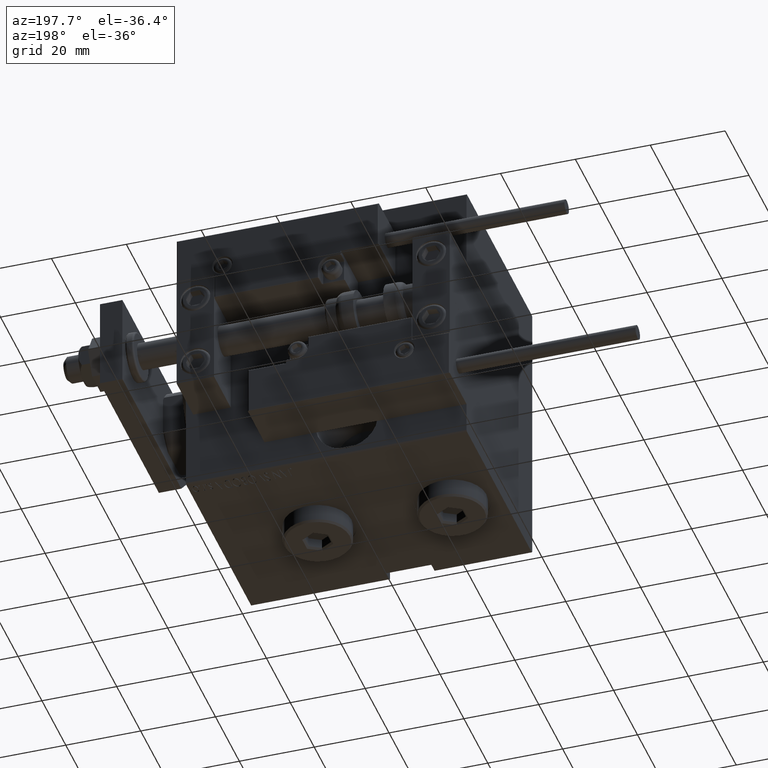
[diagram: clean part render]
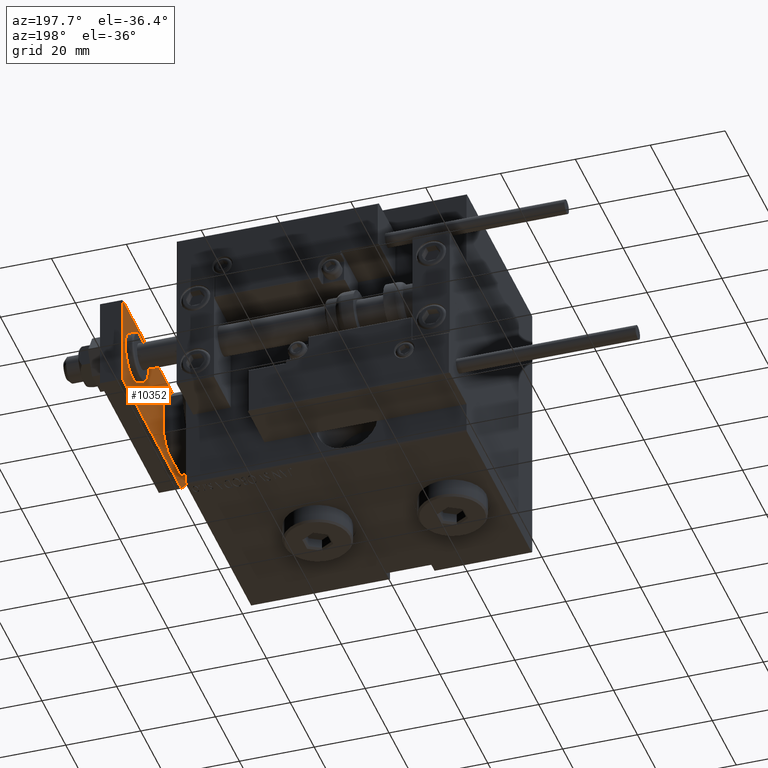
[diagram: same view with one face highlighted and labeled with its STEP entity id]
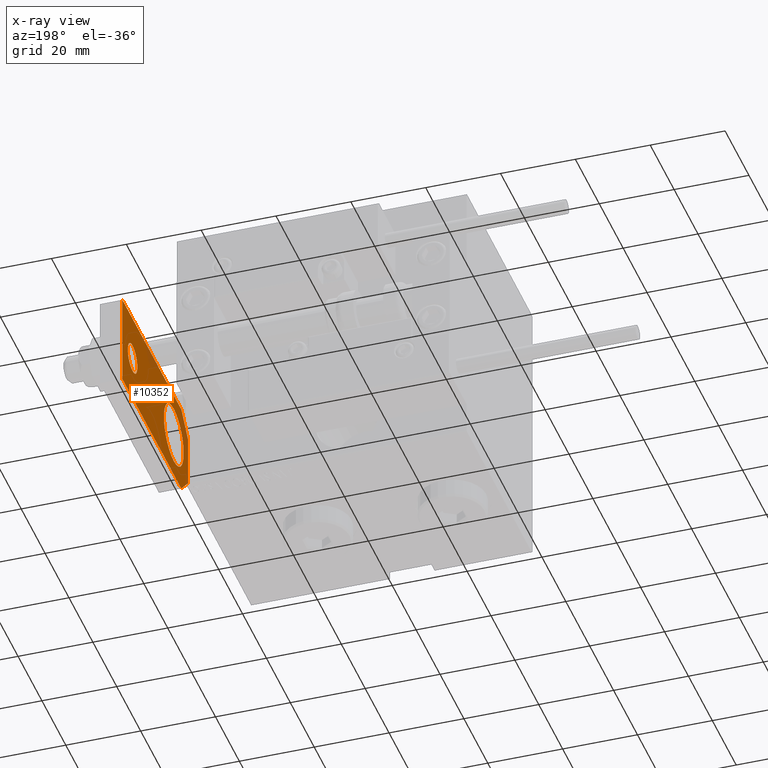
[diagram: x-ray of the same camera — body ghosted, the highlighted face saturated]
A machine part, auxiliary view. The second image highlights one B-rep face of the part: STEP entity #10352.
The next image is the same camera in x-ray: the body ghosted, the highlighted face saturated — about 9% of this face is hidden behind the body in this view.
In plain terms, the highlighted planar face has unit normal (1, 0, -0).
Its self-contained STEP definition (entity closure, byte-faithful):
#100 = VECTOR ( 'NONE', #10829, 1000.000000000000000 ) ;
#377 = DIRECTION ( 'NONE',  ( 1.000000000000000000, 0.000000000000000000, 0.000000000000000000 ) ) ;
#426 = LINE ( 'NONE', #31854, #49509 ) ;
#1174 = DIRECTION ( 'NONE',  ( -6.308085367188389994E-17, 1.000000000000000000, 0.000000000000000000 ) ) ;
#2298 = VERTEX_POINT ( 'NONE', #23730 ) ;
#2416 = CARTESIAN_POINT ( 'NONE',  ( -8.250000000000000000, 11.99999999999999645, 0.000000000000000000 ) ) ;
#3471 = LINE ( 'NONE', #19182, #4684 ) ;
#3542 = ORIENTED_EDGE ( 'NONE', *, *, #45625, .F. ) ;
#4048 = VERTEX_POINT ( 'NONE', #37767 ) ;
#4608 = AXIS2_PLACEMENT_3D ( 'NONE', #28728, #32345, #48057 ) ;
#4684 = VECTOR ( 'NONE', #35149, 1000.000000000000000 ) ;
#4799 = VERTEX_POINT ( 'NONE', #43992 ) ;
#7713 = CARTESIAN_POINT ( 'NONE',  ( 12.50000000000000000, 55.00000000000000000, 0.000000000000000000 ) ) ;
#8370 = CIRCLE ( 'NONE', #37140, 8.250000000000000000 ) ;
#9263 = EDGE_CURVE ( 'NONE', #9998, #36546, #3471, .T. ) ;
#9410 = DIRECTION ( 'NONE',  ( -0.7071067811865467956, 0.7071067811865483499, -0.000000000000000000 ) ) ;
#9998 = VERTEX_POINT ( 'NONE', #44710 ) ;
#10269 = LINE ( 'NONE', #14390, #45843 ) ;
#10352 = ADVANCED_FACE ( 'NONE', ( #28682, #48266, #28931 ), #48014, .F. ) ;
#10796 = DIRECTION ( 'NONE',  ( 1.000000000000000000, 0.000000000000000000, 0.000000000000000000 ) ) ;
#10829 = DIRECTION ( 'NONE',  ( -1.000000000000000000, 0.000000000000000000, 0.000000000000000000 ) ) ;
#11480 = VECTOR ( 'NONE', #9410, 1000.000000000000000 ) ;
#12187 = VERTEX_POINT ( 'NONE', #2416 ) ;
#12969 = EDGE_CURVE ( 'NONE', #38620, #4048, #33426, .T. ) ;
#12988 = DIRECTION ( 'NONE',  ( -0.000000000000000000, 0.000000000000000000, 1.000000000000000000 ) ) ;
#14390 = CARTESIAN_POINT ( 'NONE',  ( 12.50000000000000355, 5.659999999999991260, 0.000000000000000000 ) ) ;
#14662 = CARTESIAN_POINT ( 'NONE',  ( -9.629649721936179265E-32, 11.99999999999999645, 0.000000000000000000 ) ) ;
#16463 = LINE ( 'NONE', #29044, #18524 ) ;
#16522 = ORIENTED_EDGE ( 'NONE', *, *, #9263, .F. ) ;
#16741 = ORIENTED_EDGE ( 'NONE', *, *, #49451, .T. ) ;
#16843 = CARTESIAN_POINT ( 'NONE',  ( 0.000000000000000000, 0.000000000000000000, 0.000000000000000000 ) ) ;
#17179 = DIRECTION ( 'NONE',  ( 0.000000000000000000, 0.000000000000000000, 1.000000000000000000 ) ) ;
#17547 = AXIS2_PLACEMENT_3D ( 'NONE', #21038, #17179, #32903 ) ;
#18524 = VECTOR ( 'NONE', #44765, 1000.000000000000000 ) ;
#19182 = CARTESIAN_POINT ( 'NONE',  ( -12.50000000000000355, 4.814824860968089633E-32, 0.000000000000000000 ) ) ;
#21038 = CARTESIAN_POINT ( 'NONE',  ( -9.629649721936179265E-32, 11.99999999999999645, 0.000000000000000000 ) ) ;
#21290 = EDGE_LOOP ( 'NONE', ( #43705, #27270 ) ) ;
#21326 = EDGE_CURVE ( 'NONE', #25392, #44738, #16463, .T. ) ;
#21491 = CARTESIAN_POINT ( 'NONE',  ( -6.840000000000012292, 4.814824860968089633E-32, 0.000000000000000000 ) ) ;
#22553 = EDGE_LOOP ( 'NONE', ( #16522, #42014, #30654, #48951, #3542, #44499 ) ) ;
#23730 = CARTESIAN_POINT ( 'NONE',  ( 12.50000000000000000, 55.00000000000000000, 0.000000000000000000 ) ) ;
#25392 = VERTEX_POINT ( 'NONE', #32982 ) ;
#26146 = AXIS2_PLACEMENT_3D ( 'NONE', #16843, #12988, #377 ) ;
#27270 = ORIENTED_EDGE ( 'NONE', *, *, #31868, .T. ) ;
#27862 = AXIS2_PLACEMENT_3D ( 'NONE', #29885, #34268, #45094 ) ;
#28682 = FACE_OUTER_BOUND ( 'NONE', #22553, .T. ) ;
#28728 = CARTESIAN_POINT ( 'NONE',  ( -1.432611055310774642E-16, 46.50000000000000000, 0.000000000000000000 ) ) ;
#28931 = FACE_BOUND ( 'NONE', #42082, .T. ) ;
#28964 = LINE ( 'NONE', #21491, #11480 ) ;
#29044 = CARTESIAN_POINT ( 'NONE',  ( -12.49999999999999822, 55.00000000000000000, 0.000000000000000000 ) ) ;
#29505 = CARTESIAN_POINT ( 'NONE',  ( 6.839999999999998970, 4.814824860968089633E-32, 0.000000000000000000 ) ) ;
#29515 = EDGE_CURVE ( 'NONE', #29891, #36546, #10269, .T. ) ;
#29885 = CARTESIAN_POINT ( 'NONE',  ( -1.432611055310774642E-16, 46.50000000000000000, 0.000000000000000000 ) ) ;
#29891 = VERTEX_POINT ( 'NONE', #42610 ) ;
#30654 = ORIENTED_EDGE ( 'NONE', *, *, #21326, .F. ) ;
#31854 = CARTESIAN_POINT ( 'NONE',  ( 12.50000000000000355, 4.814824860968089633E-32, 0.000000000000000000 ) ) ;
#31868 = EDGE_CURVE ( 'NONE', #4048, #38620, #34448, .T. ) ;
#32345 = DIRECTION ( 'NONE',  ( 0.000000000000000000, 0.000000000000000000, 1.000000000000000000 ) ) ;
#32903 = DIRECTION ( 'NONE',  ( 1.000000000000000000, 0.000000000000000000, 0.000000000000000000 ) ) ;
#32982 = CARTESIAN_POINT ( 'NONE',  ( -12.49999999999999822, 55.00000000000000000, 0.000000000000000000 ) ) ;
#33426 = CIRCLE ( 'NONE', #4608, 4.000000000000000888 ) ;
#33776 = EDGE_CURVE ( 'NONE', #9998, #44738, #28964, .T. ) ;
#34268 = DIRECTION ( 'NONE',  ( 0.000000000000000000, 0.000000000000000000, 1.000000000000000000 ) ) ;
#34448 = CIRCLE ( 'NONE', #27862, 4.000000000000000888 ) ;
#34927 = DIRECTION ( 'NONE',  ( -0.7071067811865483499, -0.7071067811865465735, -0.000000000000000000 ) ) ;
#35144 = CARTESIAN_POINT ( 'NONE',  ( -12.50000000000000355, 5.660000000000005471, 0.000000000000000000 ) ) ;
#35149 = DIRECTION ( 'NONE',  ( 1.000000000000000000, 0.000000000000000000, 0.000000000000000000 ) ) ;
#36546 = VERTEX_POINT ( 'NONE', #29505 ) ;
#37140 = AXIS2_PLACEMENT_3D ( 'NONE', #14662, #46084, #10796 ) ;
#37767 = CARTESIAN_POINT ( 'NONE',  ( 4.000000000000000888, 46.50000000000000000, 0.000000000000000000 ) ) ;
#38098 = EDGE_CURVE ( 'NONE', #2298, #25392, #42497, .T. ) ;
#38620 = VERTEX_POINT ( 'NONE', #44713 ) ;
#40571 = EDGE_CURVE ( 'NONE', #12187, #4799, #8370, .T. ) ;
#42014 = ORIENTED_EDGE ( 'NONE', *, *, #33776, .T. ) ;
#42082 = EDGE_LOOP ( 'NONE', ( #43500, #16741 ) ) ;
#42497 = LINE ( 'NONE', #7713, #100 ) ;
#42610 = CARTESIAN_POINT ( 'NONE',  ( 12.50000000000000355, 5.659999999999991260, 0.000000000000000000 ) ) ;
#43088 = CIRCLE ( 'NONE', #17547, 8.250000000000000000 ) ;
#43500 = ORIENTED_EDGE ( 'NONE', *, *, #40571, .T. ) ;
#43705 = ORIENTED_EDGE ( 'NONE', *, *, #12969, .T. ) ;
#43992 = CARTESIAN_POINT ( 'NONE',  ( 8.250000000000000000, 11.99999999999999822, 0.000000000000000000 ) ) ;
#44499 = ORIENTED_EDGE ( 'NONE', *, *, #29515, .T. ) ;
#44710 = CARTESIAN_POINT ( 'NONE',  ( -6.840000000000012292, 4.814824860968089633E-32, 0.000000000000000000 ) ) ;
#44713 = CARTESIAN_POINT ( 'NONE',  ( -4.000000000000000888, 46.50000000000000000, 0.000000000000000000 ) ) ;
#44738 = VERTEX_POINT ( 'NONE', #35144 ) ;
#44765 = DIRECTION ( 'NONE',  ( -9.462128050782584375E-17, -1.000000000000000000, 0.000000000000000000 ) ) ;
#45094 = DIRECTION ( 'NONE',  ( 1.000000000000000000, 0.000000000000000000, 0.000000000000000000 ) ) ;
#45625 = EDGE_CURVE ( 'NONE', #29891, #2298, #426, .T. ) ;
#45843 = VECTOR ( 'NONE', #34927, 1000.000000000000114 ) ;
#46084 = DIRECTION ( 'NONE',  ( 0.000000000000000000, 0.000000000000000000, 1.000000000000000000 ) ) ;
#48014 = PLANE ( 'NONE',  #26146 ) ;
#48057 = DIRECTION ( 'NONE',  ( 1.000000000000000000, 0.000000000000000000, 0.000000000000000000 ) ) ;
#48266 = FACE_BOUND ( 'NONE', #21290, .T. ) ;
#48951 = ORIENTED_EDGE ( 'NONE', *, *, #38098, .F. ) ;
#49451 = EDGE_CURVE ( 'NONE', #4799, #12187, #43088, .T. ) ;
#49509 = VECTOR ( 'NONE', #1174, 1000.000000000000000 ) ;